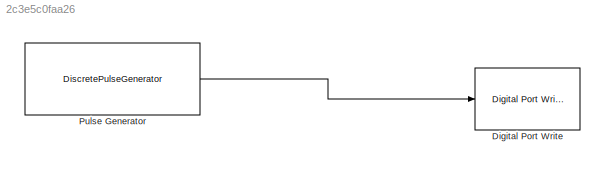
MODEL slx_2c3e5c0faa26
KIND model
CONFIG AbsTol = auto
CONFIG EnableMultiTasking = on
CONFIG FixedStep = auto
CONFIG MaxStep = auto
CONFIG MinStep = auto
CONFIG RelTol = 1e-3
CONFIG SampleTimeConstraint = Unconstrained
CONFIG SolverName = FixedStepAuto
CONFIG StartTime = 0.0
CONFIG StopTime = 10.0
BLOCK [Reference] Digital Port Write  REF=stm32f4xxblockslib/Digital Port Write
  LibrarySourceBlock = stm32h7xxblockslib/Digital Port Write
  SourceBlock = stm32f4xxblockslib/Digital Port Write
  SourceType = stm32cube.blocks.DigitalPortWrite
BLOCK [DiscretePulseGenerator] Pulse Generator
  Period = 1
  PulseType = Time based
  PulseWidth = 50
LINE Pulse Generator:1 -> Digital Port Write:1
